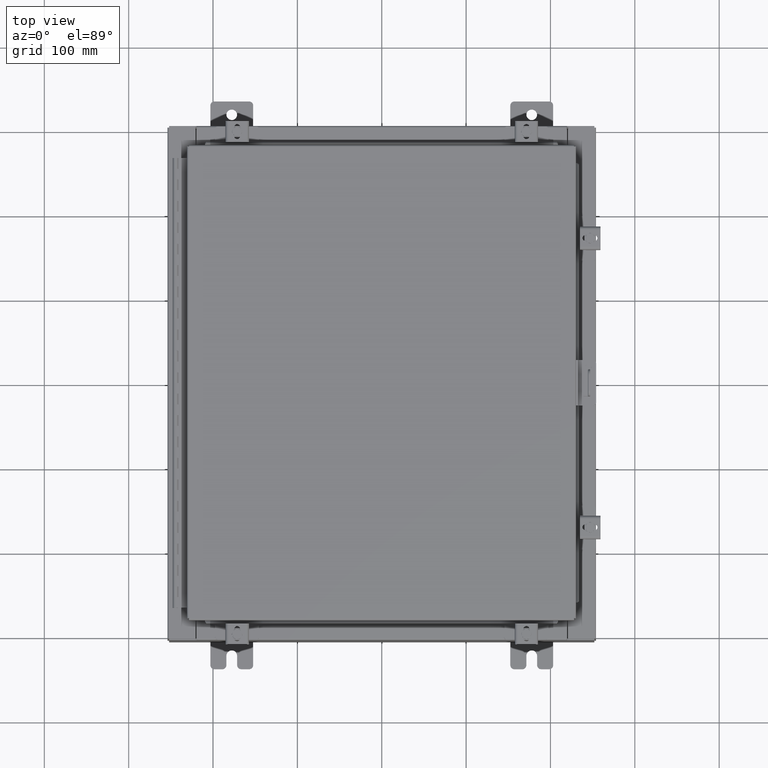
[diagram: clean part render]
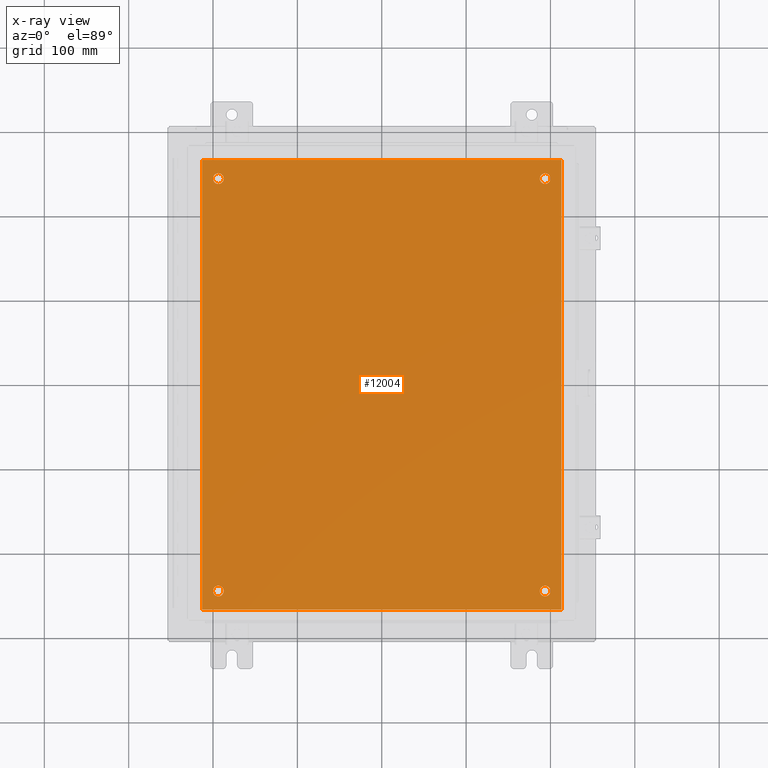
[diagram: x-ray — body ghosted, one internal face saturated and labeled with its STEP entity id]
A machine part, top view, then the same camera in x-ray: the body is ghosted and one INTERNAL B-rep face — a face not visible from any outside direction — is saturated and labeled: STEP entity #12004.
In plain terms, the highlighted planar face has unit normal (0, 0, -1).
Its self-contained STEP definition (entity closure, byte-faithful):
#114 = CARTESIAN_POINT ( 'NONE',  ( -8.383000000000002700, 10.50000000000000200, -0.1039999999999997600 ) ) ;
#821 = DIRECTION ( 'NONE',  ( -1.000000000000000000, 0.0000000000000000000, 0.0000000000000000000 ) ) ;
#1529 = EDGE_CURVE ( 'NONE', #31125, #32405, #10227, .T. ) ;
#2000 = CARTESIAN_POINT ( 'NONE',  ( 7.625000000000004400, -9.625000000000001800, -0.1040000000000000400 ) ) ;
#2407 = CARTESIAN_POINT ( 'NONE',  ( 7.625000000000004400, 9.625000000000001800, -0.1040000000000000400 ) ) ;
#2412 = VERTEX_POINT ( 'NONE', #6985 ) ;
#2795 = ORIENTED_EDGE ( 'NONE', *, *, #14929, .T. ) ;
#3328 = ORIENTED_EDGE ( 'NONE', *, *, #21235, .T. ) ;
#4135 = CIRCLE ( 'NONE', #16423, 0.2499999999999987000 ) ;
#4338 = FACE_OUTER_BOUND ( 'NONE', #32338, .T. ) ;
#4411 = CARTESIAN_POINT ( 'NONE',  ( 8.382999999999999100, -10.50000000000000000, -0.1040000000000000400 ) ) ;
#4507 = LINE ( 'NONE', #19364, #30783 ) ;
#4525 = LINE ( 'NONE', #13131, #10490 ) ;
#4548 = DIRECTION ( 'NONE',  ( -1.000000000000000000, 0.0000000000000000000, 0.0000000000000000000 ) ) ;
#4706 = DIRECTION ( 'NONE',  ( 0.0000000000000000000, 0.0000000000000000000, -1.000000000000000000 ) ) ;
#4779 = LINE ( 'NONE', #27894, #18293 ) ;
#4895 = DIRECTION ( 'NONE',  ( -0.0000000000000000000, -0.0000000000000000000, 1.000000000000000000 ) ) ;
#4958 = DIRECTION ( 'NONE',  ( -1.000000000000000000, 0.0000000000000000000, 0.0000000000000000000 ) ) ;
#4972 = EDGE_CURVE ( 'NONE', #14395, #2412, #4507, .T. ) ;
#5205 = LINE ( 'NONE', #12423, #17924 ) ;
#5716 = CARTESIAN_POINT ( 'NONE',  ( 7.375000000000005300, 9.625000000000001800, -0.1040000000000000400 ) ) ;
#5929 = ORIENTED_EDGE ( 'NONE', *, *, #4972, .F. ) ;
#6244 = ORIENTED_EDGE ( 'NONE', *, *, #28069, .F. ) ;
#6374 = DIRECTION ( 'NONE',  ( -0.0000000000000000000, -0.0000000000000000000, 1.000000000000000000 ) ) ;
#6741 = VERTEX_POINT ( 'NONE', #15135 ) ;
#6807 = EDGE_LOOP ( 'NONE', ( #23455, #17346 ) ) ;
#6985 = CARTESIAN_POINT ( 'NONE',  ( -8.383000000000002700, -10.50000000000000000, -0.1039999999999997600 ) ) ;
#7626 = ORIENTED_EDGE ( 'NONE', *, *, #11037, .F. ) ;
#7769 = CARTESIAN_POINT ( 'NONE',  ( -7.625000000000004400, 9.625000000000001800, -0.1040000000000000400 ) ) ;
#7812 = EDGE_CURVE ( 'NONE', #8649, #12723, #26110, .T. ) ;
#8159 = CIRCLE ( 'NONE', #20554, 0.2499999999999987000 ) ;
#8649 = VERTEX_POINT ( 'NONE', #8911 ) ;
#8771 = AXIS2_PLACEMENT_3D ( 'NONE', #29074, #13840, #31639 ) ;
#8911 = CARTESIAN_POINT ( 'NONE',  ( -7.375000000000004400, -9.625000000000001800, -0.1040000000000000400 ) ) ;
#8963 = AXIS2_PLACEMENT_3D ( 'NONE', #7769, #25551, #10304 ) ;
#9028 = EDGE_CURVE ( 'NONE', #27642, #14395, #4525, .T. ) ;
#9690 = CARTESIAN_POINT ( 'NONE',  ( 0.0000000000000000000, 0.0000000000000000000, -0.1040000000000000400 ) ) ;
#10078 = DIRECTION ( 'NONE',  ( 0.0000000000000000000, 1.000000000000000000, 0.0000000000000000000 ) ) ;
#10227 = CIRCLE ( 'NONE', #22601, 0.2499999999999987000 ) ;
#10304 = DIRECTION ( 'NONE',  ( -1.000000000000000000, 0.0000000000000000000, 0.0000000000000000000 ) ) ;
#10490 = VECTOR ( 'NONE', #30928, 39.37007874015748100 ) ;
#10845 = ORIENTED_EDGE ( 'NONE', *, *, #20282, .T. ) ;
#11022 = CARTESIAN_POINT ( 'NONE',  ( 8.382999999999999100, 10.50000000000000200, -0.1040000000000000400 ) ) ;
#11037 = EDGE_CURVE ( 'NONE', #2412, #18398, #5205, .T. ) ;
#11115 = FACE_BOUND ( 'NONE', #25908, .T. ) ;
#12004 = ADVANCED_FACE ( 'NONE', ( #24623, #18649, #17859, #11115, #4338 ), #27489, .T. ) ;
#12282 = VERTEX_POINT ( 'NONE', #20897 ) ;
#12419 = CIRCLE ( 'NONE', #23545, 0.2499999999999987000 ) ;
#12423 = CARTESIAN_POINT ( 'NONE',  ( -8.500000000000001800, -10.50000000000000000, -0.1040000000000000400 ) ) ;
#12554 = EDGE_LOOP ( 'NONE', ( #23287, #10845 ) ) ;
#12723 = VERTEX_POINT ( 'NONE', #22658 ) ;
#13131 = CARTESIAN_POINT ( 'NONE',  ( -8.500000000000001800, 10.50000000000000200, -0.1040000000000000400 ) ) ;
#13227 = CIRCLE ( 'NONE', #8771, 0.2499999999999998100 ) ;
#13245 = CARTESIAN_POINT ( 'NONE',  ( 7.375000000000005300, -9.625000000000001800, -0.1040000000000000400 ) ) ;
#13344 = ORIENTED_EDGE ( 'NONE', *, *, #20450, .T. ) ;
#13620 = VERTEX_POINT ( 'NONE', #5716 ) ;
#13840 = DIRECTION ( 'NONE',  ( -0.0000000000000000000, -0.0000000000000000000, 1.000000000000000000 ) ) ;
#14395 = VERTEX_POINT ( 'NONE', #114 ) ;
#14398 = CARTESIAN_POINT ( 'NONE',  ( -7.625000000000004400, -9.625000000000001800, -0.1040000000000000400 ) ) ;
#14780 = EDGE_CURVE ( 'NONE', #12723, #8649, #18103, .T. ) ;
#14929 = EDGE_CURVE ( 'NONE', #13620, #32189, #8159, .T. ) ;
#15135 = CARTESIAN_POINT ( 'NONE',  ( -7.375000000000004400, 9.625000000000001800, -0.1040000000000000400 ) ) ;
#16045 = DIRECTION ( 'NONE',  ( -0.0000000000000000000, -0.0000000000000000000, 1.000000000000000000 ) ) ;
#16423 = AXIS2_PLACEMENT_3D ( 'NONE', #2000, #19774, #4548 ) ;
#16979 = DIRECTION ( 'NONE',  ( -1.000000000000000000, 0.0000000000000000000, 0.0000000000000000000 ) ) ;
#17346 = ORIENTED_EDGE ( 'NONE', *, *, #14780, .T. ) ;
#17417 = DIRECTION ( 'NONE',  ( 1.000000000000000000, 0.0000000000000000000, 0.0000000000000000000 ) ) ;
#17619 = ORIENTED_EDGE ( 'NONE', *, *, #9028, .F. ) ;
#17859 = FACE_BOUND ( 'NONE', #29300, .T. ) ;
#17924 = VECTOR ( 'NONE', #17417, 39.37007874015748100 ) ;
#18103 = CIRCLE ( 'NONE', #21182, 0.2499999999999998100 ) ;
#18293 = VECTOR ( 'NONE', #10078, 39.37007874015748100 ) ;
#18398 = VERTEX_POINT ( 'NONE', #4411 ) ;
#18649 = FACE_BOUND ( 'NONE', #12554, .T. ) ;
#19003 = AXIS2_PLACEMENT_3D ( 'NONE', #9690, #4706, #22471 ) ;
#19364 = CARTESIAN_POINT ( 'NONE',  ( -8.383000000000002700, 10.50000000000000400, -0.1039999999999997600 ) ) ;
#19620 = CIRCLE ( 'NONE', #8963, 0.2499999999999998100 ) ;
#19774 = DIRECTION ( 'NONE',  ( -0.0000000000000000000, -0.0000000000000000000, 1.000000000000000000 ) ) ;
#20121 = CARTESIAN_POINT ( 'NONE',  ( -7.625000000000004400, -9.625000000000001800, -0.1040000000000000400 ) ) ;
#20184 = DIRECTION ( 'NONE',  ( -0.0000000000000000000, -0.0000000000000000000, 1.000000000000000000 ) ) ;
#20282 = EDGE_CURVE ( 'NONE', #32405, #31125, #4135, .T. ) ;
#20450 = EDGE_CURVE ( 'NONE', #12282, #6741, #19620, .T. ) ;
#20554 = AXIS2_PLACEMENT_3D ( 'NONE', #2407, #20184, #4958 ) ;
#20897 = CARTESIAN_POINT ( 'NONE',  ( -7.875000000000003600, 9.625000000000001800, -0.1040000000000000400 ) ) ;
#21182 = AXIS2_PLACEMENT_3D ( 'NONE', #14398, #32216, #16979 ) ;
#21235 = EDGE_CURVE ( 'NONE', #6741, #12282, #13227, .T. ) ;
#21593 = CARTESIAN_POINT ( 'NONE',  ( 7.625000000000004400, 9.625000000000001800, -0.1040000000000000400 ) ) ;
#22367 = CARTESIAN_POINT ( 'NONE',  ( 7.875000000000002700, 9.625000000000001800, -0.1040000000000000400 ) ) ;
#22471 = DIRECTION ( 'NONE',  ( -1.000000000000000000, 0.0000000000000000000, -0.0000000000000000000 ) ) ;
#22601 = AXIS2_PLACEMENT_3D ( 'NONE', #31284, #16045, #821 ) ;
#22658 = CARTESIAN_POINT ( 'NONE',  ( -7.875000000000003600, -9.625000000000001800, -0.1040000000000000400 ) ) ;
#22669 = DIRECTION ( 'NONE',  ( -1.000000000000000000, 0.0000000000000000000, 0.0000000000000000000 ) ) ;
#23287 = ORIENTED_EDGE ( 'NONE', *, *, #1529, .T. ) ;
#23455 = ORIENTED_EDGE ( 'NONE', *, *, #7812, .T. ) ;
#23545 = AXIS2_PLACEMENT_3D ( 'NONE', #21593, #6374, #24159 ) ;
#24159 = DIRECTION ( 'NONE',  ( -1.000000000000000000, 0.0000000000000000000, 0.0000000000000000000 ) ) ;
#24623 = FACE_BOUND ( 'NONE', #6807, .T. ) ;
#25551 = DIRECTION ( 'NONE',  ( -0.0000000000000000000, -0.0000000000000000000, 1.000000000000000000 ) ) ;
#25908 = EDGE_LOOP ( 'NONE', ( #3328, #13344 ) ) ;
#25930 = ORIENTED_EDGE ( 'NONE', *, *, #27084, .T. ) ;
#26110 = CIRCLE ( 'NONE', #29556, 0.2499999999999998100 ) ;
#27084 = EDGE_CURVE ( 'NONE', #32189, #13620, #12419, .T. ) ;
#27489 = PLANE ( 'NONE',  #19003 ) ;
#27642 = VERTEX_POINT ( 'NONE', #11022 ) ;
#27787 = CARTESIAN_POINT ( 'NONE',  ( 7.875000000000002700, -9.625000000000001800, -0.1040000000000000400 ) ) ;
#27894 = CARTESIAN_POINT ( 'NONE',  ( 8.382999999999999100, -10.50000000000000200, -0.1039999999999997600 ) ) ;
#28069 = EDGE_CURVE ( 'NONE', #18398, #27642, #4779, .T. ) ;
#29074 = CARTESIAN_POINT ( 'NONE',  ( -7.625000000000004400, 9.625000000000001800, -0.1040000000000000400 ) ) ;
#29300 = EDGE_LOOP ( 'NONE', ( #25930, #2795 ) ) ;
#29396 = DIRECTION ( 'NONE',  ( 0.0000000000000000000, -1.000000000000000000, 0.0000000000000000000 ) ) ;
#29556 = AXIS2_PLACEMENT_3D ( 'NONE', #20121, #4895, #22669 ) ;
#30783 = VECTOR ( 'NONE', #29396, 39.37007874015748100 ) ;
#30928 = DIRECTION ( 'NONE',  ( -1.000000000000000000, -0.0000000000000000000, -0.0000000000000000000 ) ) ;
#31125 = VERTEX_POINT ( 'NONE', #27787 ) ;
#31284 = CARTESIAN_POINT ( 'NONE',  ( 7.625000000000004400, -9.625000000000001800, -0.1040000000000000400 ) ) ;
#31639 = DIRECTION ( 'NONE',  ( -1.000000000000000000, 0.0000000000000000000, 0.0000000000000000000 ) ) ;
#32189 = VERTEX_POINT ( 'NONE', #22367 ) ;
#32216 = DIRECTION ( 'NONE',  ( -0.0000000000000000000, -0.0000000000000000000, 1.000000000000000000 ) ) ;
#32338 = EDGE_LOOP ( 'NONE', ( #7626, #5929, #17619, #6244 ) ) ;
#32405 = VERTEX_POINT ( 'NONE', #13245 ) ;